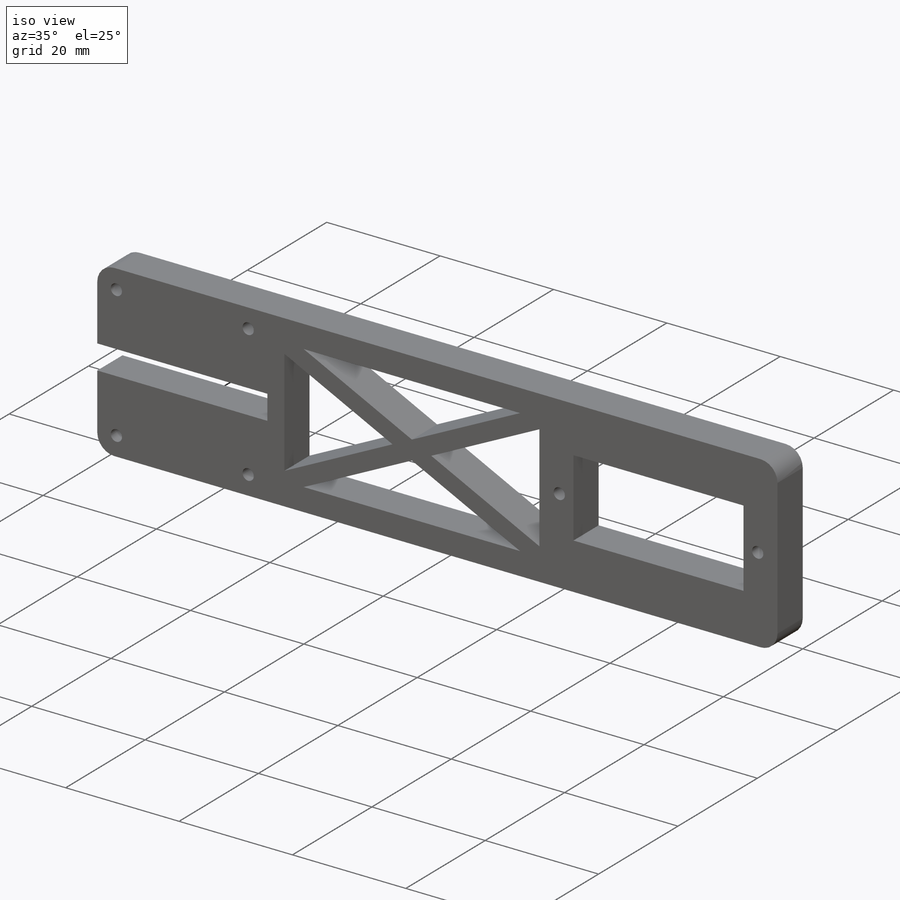
[diagram: iso view]
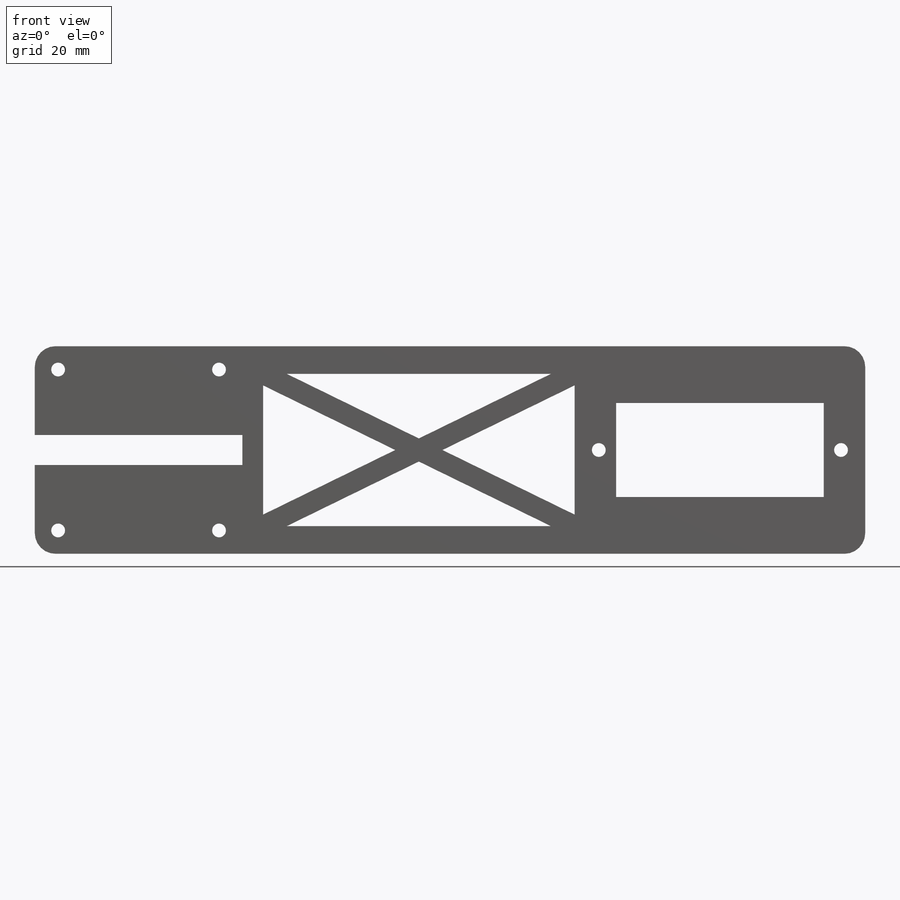
[diagram: front view]
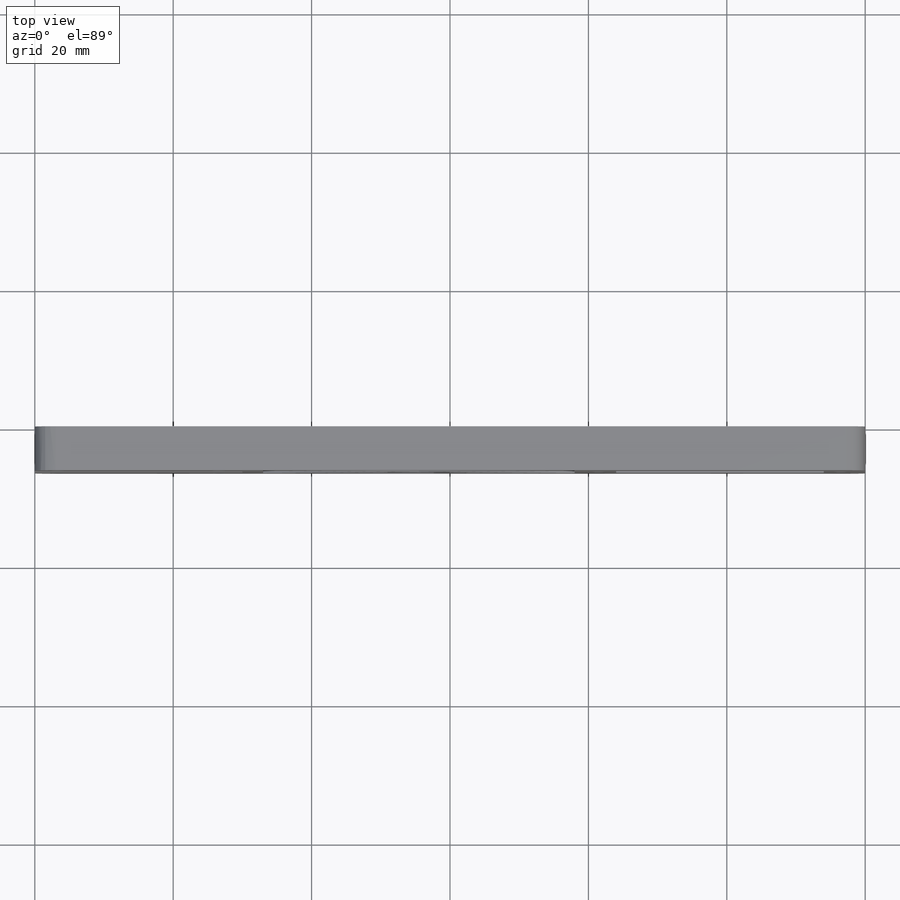
[diagram: top view]
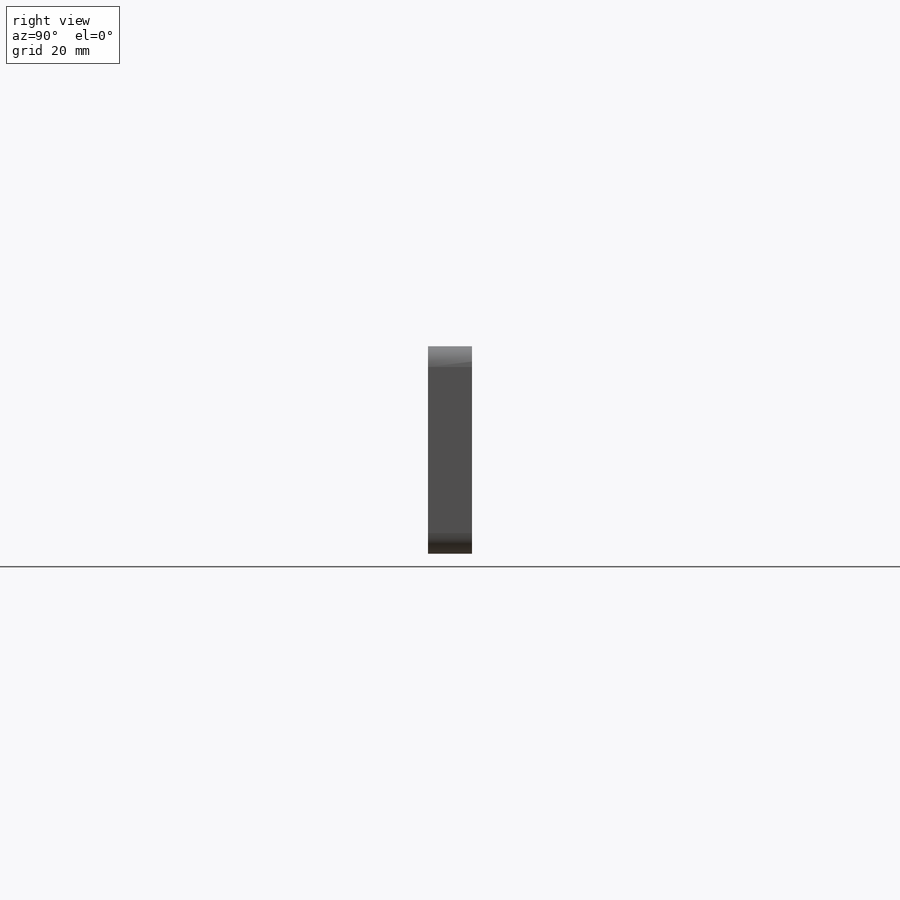
[diagram: right view]
SOLIDWORKS PART (.sldprt)
format: sldprt  version: not decoded by parser v0  size: 506,368 bytes
history: native  units: mm
features: sketch x8, thread x6, hole x2, material x1, extrude x1, fillet x1, cut_extrude x1 (+11 scaffold rows collapsed)
feature tree (31):
  scaffold x11  (default folders/planes/origin — collapsed)
  material  "Balsa"
  sketch  "Sketch1"  dims[c1.D1=30.0mm c1.D2=120.0mm c1.D3=8.0mm c1.D4=30.0mm c1.D5=4.318mm c1.D6=30.0mm c2.D3=30.0mm c2.D4=13.6mm c2.D7=6.0mm]
  extrude  "main shape"  Depth=6.35mm
  sketch  "shoulder X mount hole location"  dims[c1.D1=10.0mm c1.D2=30.0mm c1.D3=~4.531605mm c2.D1=23.25mm c2.D2=5.0mm c2.D3=5.0mm c3.D2=2.5mm]
  hole  "shoulder X mount holes"  Diameter=1.9939mm Depth=7.67mm
  sketch  "Sketch4"
  sketch  "Sketch3"  dims[hole-wizard template sketch: 47 standard entries collapsed; hole parameters kept: c15.Tap Drill Depth=7.67mm c15.D3=~14.816244mm c15.Drill Angle=118.0deg]
  thread  "Hole Thread1"  Diameter=5.03mm  [1 undecoded]
  thread  "Hole Thread2"  Diameter=5.03mm  [1 undecoded]
  thread  "Hole Thread3"  Diameter=5.03mm  [1 undecoded]
  thread  "Hole Thread4"  Diameter=5.03mm  [1 undecoded]
  sketch  "elbow servo mount hole location"  dims[c1.D1=30.0mm c1.D2=22.0mm c1.D3=4.0mm c2.D1=35.0mm c2.D2=3.0mm]
  hole  "elbow servo mount holes"  Diameter=1.9939mm Depth=7.67mm
  sketch  "Sketch7"
  sketch  "Sketch6"  dims[hole-wizard template sketch: 47 standard entries collapsed; hole parameters kept: c15.Tap Drill Depth=7.67mm c15.D3=~14.816244mm c15.Drill Angle=118.0deg]
  thread  "Hole Thread6"  Diameter=5.03mm  [1 undecoded]
  thread  "Hole Thread7"  Diameter=5.03mm  [1 undecoded]
  fillet  "Fillet2"  Radius=3mm
  sketch  "Sketch8"  dims[c1.D1=25.0mm c1.D2=22.0mm c1.D3=3.0mm c1.D4=10.0mm c1.D5=3.0mm c1.D6=~28.260743mm c2.D1=45.0mm c2.D6=22.0mm c2.D2=6.0mm]
  cut_extrude  "weight removal"  [1 undecoded]
decode coverage: 16 of 19 modeling features carry decoded parameters
note: ~ marks probable driven/reference dimensions
note: 7 parameter values undecoded
note: suppression state not decoded; provenance and decode notes live in map.json
